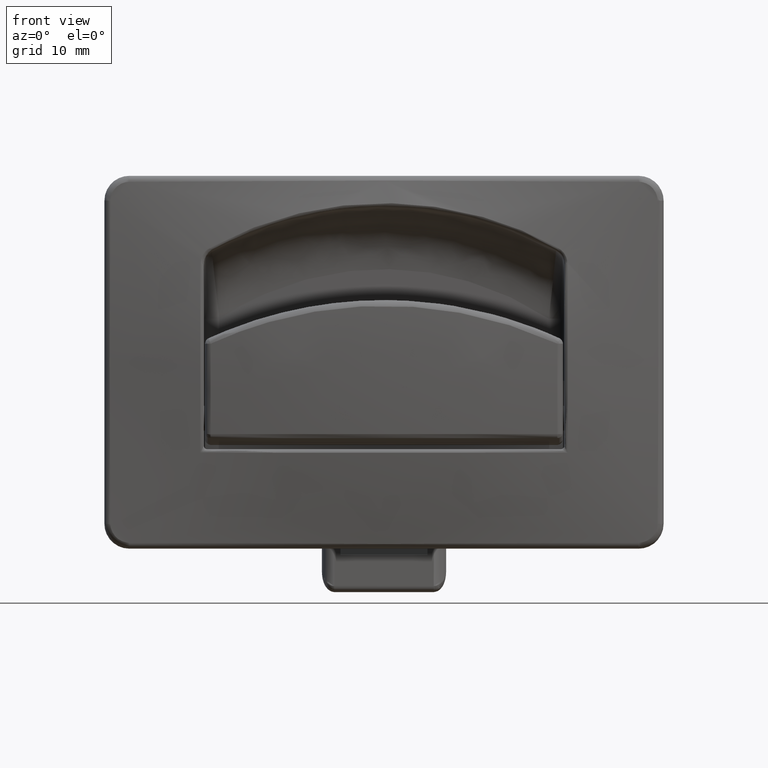
[diagram: clean part render]
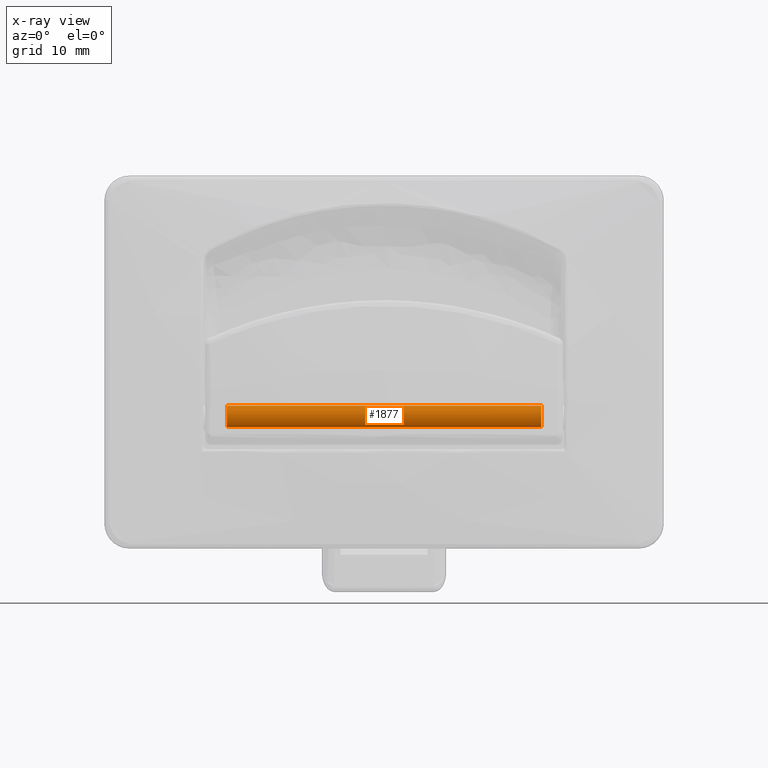
[diagram: x-ray — body ghosted, one internal face saturated and labeled with its STEP entity id]
A machine part, front view, then the same camera in x-ray: the body is ghosted and one INTERNAL B-rep face — a face not visible from any outside direction — is saturated and labeled: STEP entity #1877.
In plain terms, the highlighted face is a freeform B-spline surface patch.
Its self-contained STEP definition (entity closure, byte-faithful):
#1706=CARTESIAN_POINT('',(25.299999999999930,4.376708773183150,22.450748164177170));
#1707=VERTEX_POINT('',#1706);
#1733=CARTESIAN_POINT('',(25.299999999999930,1.623291226816958,19.549251835822819));
#1734=VERTEX_POINT('',#1733);
#1743=CARTESIAN_POINT('',(-25.300000000001301,1.623291227875127,19.549251834818659));
#1744=VERTEX_POINT('',#1743);
#1745=CARTESIAN_POINT('',(25.299999999999930,1.623291226816958,19.549251835822819));
#1746=CARTESIAN_POINT('',(-25.300000000001301,1.623291227875127,19.549251834818659));
#1747=QUASI_UNIFORM_CURVE('',1,(#1745,#1746),.UNSPECIFIED.,.F.,.U.);
#1748=EDGE_CURVE('',#1734,#1744,#1747,.T.);
#1773=CARTESIAN_POINT('',(-25.300000000001312,4.376708772124987,22.450748165181341));
#1774=VERTEX_POINT('',#1773);
#1784=CARTESIAN_POINT('',(25.299999999999930,4.376708773183150,22.450748164177170));
#1785=CARTESIAN_POINT('',(-25.300000000001312,4.376708772124987,22.450748165181341));
#1786=QUASI_UNIFORM_CURVE('',1,(#1784,#1785),.UNSPECIFIED.,.F.,.U.);
#1787=EDGE_CURVE('',#1707,#1774,#1786,.T.);
#1792=CARTESIAN_POINT('',(26.565000000001369,1.623290848612548,19.549251257975421));
#1793=CARTESIAN_POINT('',(26.565000000001362,0.172542106587973,20.925960409362929));
#1794=CARTESIAN_POINT('',(26.565000000001369,1.549251257975480,22.376709151387509));
#1795=CARTESIAN_POINT('',(26.565000000001362,2.925960409362987,23.827457893412078));
#1796=CARTESIAN_POINT('',(26.565000000001369,4.376709151387563,22.450748742024579));
#1797=CARTESIAN_POINT('',(-26.596625000001360,1.623290848612548,19.549251257975421));
#1798=CARTESIAN_POINT('',(-26.596625000001371,0.172542106587973,20.925960409362929));
#1799=CARTESIAN_POINT('',(-26.596625000001360,1.549251257975480,22.376709151387509));
#1800=CARTESIAN_POINT('',(-26.596625000001371,2.925960409362987,23.827457893412078));
#1801=CARTESIAN_POINT('',(-26.596625000001360,4.376709151387563,22.450748742024579));
#1809=(BOUNDED_SURFACE()B_SPLINE_SURFACE(2,1,((#1792,#1797),(#1793,#1798),(#1794,#1799),(#1795,#1800),(#1796,#1801)),.UNSPECIFIED.,.F.,.F.,.U.)B_SPLINE_SURFACE_WITH_KNOTS((3,2,3),(2,2),(0.0,3.313708498984766,6.627416997969532),(0.0,53.161625000002729),.UNSPECIFIED.)GEOMETRIC_REPRESENTATION_ITEM()RATIONAL_B_SPLINE_SURFACE(((1.0,1.0),(0.707106781186548,0.707106781186548),(1.0,1.0),(0.707106781186548,0.707106781186548),(1.0,1.0)))REPRESENTATION_ITEM('')SURFACE());
#1810=CARTESIAN_POINT('',(25.300000000001301,3.000000000000055,23.0));
#1811=VERTEX_POINT('',#1810);
#1812=CARTESIAN_POINT('',(25.300000000001301,3.000000000000055,23.0));
#1813=CARTESIAN_POINT('',(25.300000000001081,3.237282765665596,23.000155605803432));
#1814=CARTESIAN_POINT('',(25.300000000000569,3.743282720391059,22.908855691545540));
#1815=CARTESIAN_POINT('',(25.300000000000122,4.181850798127403,22.636090572940969));
#1816=CARTESIAN_POINT('',(25.299999999999930,4.376708773183150,22.450748164177170));
#1817=B_SPLINE_CURVE_WITH_KNOTS('',3,(#1812,#1813,#1814,#1815,#1816),.UNSPECIFIED.,.F.,.U.,(4,1,4),(0.000000056927882,0.711799592716580,1.518471920659573),.UNSPECIFIED.);
#1818=EDGE_CURVE('',#1811,#1707,#1817,.T.);
#1819=ORIENTED_EDGE('',*,*,#1818,.T.);
#1820=ORIENTED_EDGE('',*,*,#1787,.T.);
#1821=CARTESIAN_POINT('',(-25.300000000001301,3.000000000000055,23.0));
#1822=VERTEX_POINT('',#1821);
#1823=CARTESIAN_POINT('',(-25.300000000001301,3.000000000000055,23.0));
#1824=CARTESIAN_POINT('',(-25.300000000001361,3.158177639125237,23.000035790132589));
#1825=CARTESIAN_POINT('',(-25.300000000001269,3.474500720387530,22.962283486368179));
#1826=CARTESIAN_POINT('',(-25.300000000001148,3.952284640043118,22.784700397788900));
#1827=CARTESIAN_POINT('',(-25.300000000001379,4.239075966491432,22.581462470077231));
#1828=CARTESIAN_POINT('',(-25.300000000001312,4.376708772124987,22.450748165181341));
#1829=B_SPLINE_CURVE_WITH_KNOTS('',3,(#1823,#1824,#1825,#1826,#1827,#1828),.UNSPECIFIED.,.F.,.U.,(4,1,1,4),(0.000000056927965,0.474528512040467,0.949044650564109,1.518471919200690),.UNSPECIFIED.);
#1830=EDGE_CURVE('',#1822,#1774,#1829,.T.);
#1831=ORIENTED_EDGE('',*,*,#1830,.F.);
#1832=CARTESIAN_POINT('',(-25.300000000001301,1.000000000001907,21.000002721706931));
#1833=VERTEX_POINT('',#1832);
#1834=CARTESIAN_POINT('',(-25.300000000001301,1.000000000001907,21.000002721706931));
#1835=CARTESIAN_POINT('',(-25.300000000001312,0.999522460012887,21.294613753756419));
#1836=CARTESIAN_POINT('',(-25.300000000001269,1.114196565353269,21.801441886820310));
#1837=CARTESIAN_POINT('',(-25.300000000001319,1.489217991262142,22.348022679935990));
#1838=CARTESIAN_POINT('',(-25.300000000001280,1.854620776269224,22.655295855746679));
#1839=CARTESIAN_POINT('',(-25.300000000001329,2.329373944319940,22.916714635436382));
#1840=CARTESIAN_POINT('',(-25.300000000001319,2.721757226242440,23.000381463726679));
#1841=CARTESIAN_POINT('',(-25.300000000001301,3.000000000000055,23.0));
#1842=B_SPLINE_CURVE_WITH_KNOTS('',3,(#1834,#1835,#1836,#1837,#1838,#1839,#1840,#1841),.UNSPECIFIED.,.F.,.U.,(4,1,1,1,1,4),(0.000000247683829,0.883602116783323,1.521779975230541,1.963537950553373,2.307161857431840,3.141669954652919),.UNSPECIFIED.);
#1843=EDGE_CURVE('',#1833,#1822,#1842,.T.);
#1844=ORIENTED_EDGE('',*,*,#1843,.F.);
#1845=CARTESIAN_POINT('',(-25.300000000001301,1.623291227875127,19.549251834818659));
#1846=CARTESIAN_POINT('',(-25.300000000001351,1.439148783788751,19.723702093716820));
#1847=CARTESIAN_POINT('',(-25.300000000001219,1.118794427526340,20.171833897068769));
#1848=CARTESIAN_POINT('',(-25.300000000001329,0.999600472896592,20.712514669582461));
#1849=CARTESIAN_POINT('',(-25.300000000001301,1.000000000001907,21.000002721706931));
#1850=B_SPLINE_CURVE_WITH_KNOTS('',3,(#1845,#1846,#1847,#1848,#1849),.UNSPECIFIED.,.F.,.U.,(4,1,4),(0.000000079395320,0.760895309637752,1.623202019608782),.UNSPECIFIED.);
#1851=EDGE_CURVE('',#1744,#1833,#1850,.T.);
#1852=ORIENTED_EDGE('',*,*,#1851,.F.);
#1853=ORIENTED_EDGE('',*,*,#1748,.F.);
#1854=CARTESIAN_POINT('',(25.300000000001301,1.000000000001907,21.000002721706910));
#1855=VERTEX_POINT('',#1854);
#1856=CARTESIAN_POINT('',(25.299999999999930,1.623291226816958,19.549251835822819));
#1857=CARTESIAN_POINT('',(25.300000000000018,1.439116151025932,19.723680637381950));
#1858=CARTESIAN_POINT('',(25.300000000000651,1.118855308812353,20.171870810337101));
#1859=CARTESIAN_POINT('',(25.300000000000960,0.999568527232911,20.712500177667021));
#1860=CARTESIAN_POINT('',(25.300000000001301,1.000000000001907,21.000002721706910));
#1861=B_SPLINE_CURVE_WITH_KNOTS('',3,(#1856,#1857,#1858,#1859,#1860),.UNSPECIFIED.,.F.,.U.,(4,1,4),(0.000000079395651,0.760895308954166,1.623202018149859),.UNSPECIFIED.);
#1862=EDGE_CURVE('',#1734,#1855,#1861,.T.);
#1863=ORIENTED_EDGE('',*,*,#1862,.T.);
#1864=CARTESIAN_POINT('',(25.300000000001301,1.000000000001907,21.000002721706910));
#1865=CARTESIAN_POINT('',(25.300000000001312,0.999929912774683,21.196354769727300));
#1866=CARTESIAN_POINT('',(25.300000000001269,1.053430081343410,21.556298665682981));
#1867=CARTESIAN_POINT('',(25.300000000001351,1.273907385514672,22.053643910941581));
#1868=CARTESIAN_POINT('',(25.300000000001202,1.634947772784909,22.504955432618779));
#1869=CARTESIAN_POINT('',(25.300000000001521,2.214796660082138,22.892440406932469));
#1870=CARTESIAN_POINT('',(25.300000000001180,2.721797711339040,23.000340443415130));
#1871=CARTESIAN_POINT('',(25.300000000001301,3.000000000000055,23.0));
#1872=B_SPLINE_CURVE_WITH_KNOTS('',3,(#1864,#1865,#1866,#1867,#1868,#1869,#1870,#1871),.UNSPECIFIED.,.F.,.U.,(4,1,1,1,1,4),(0.000000247683582,0.589058943071699,1.079968848979877,1.619889006304853,2.307161857431801,3.141669954652936),.UNSPECIFIED.);
#1873=EDGE_CURVE('',#1855,#1811,#1872,.T.);
#1874=ORIENTED_EDGE('',*,*,#1873,.T.);
#1875=EDGE_LOOP('',(#1819,#1820,#1831,#1844,#1852,#1853,#1863,#1874));
#1876=FACE_OUTER_BOUND('',#1875,.T.);
#1877=ADVANCED_FACE('',(#1876),#1809,.T.);